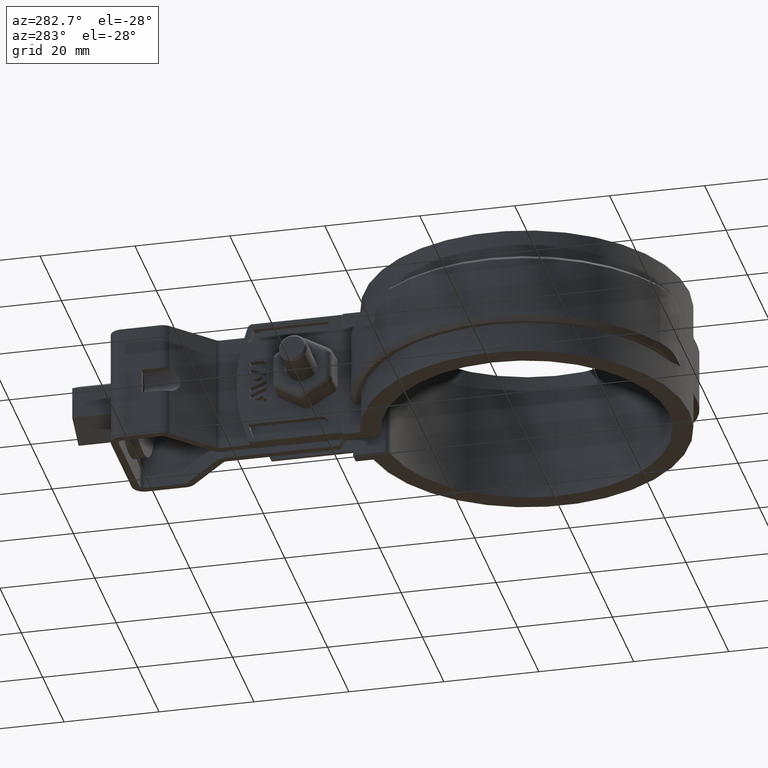
[diagram: clean part render]
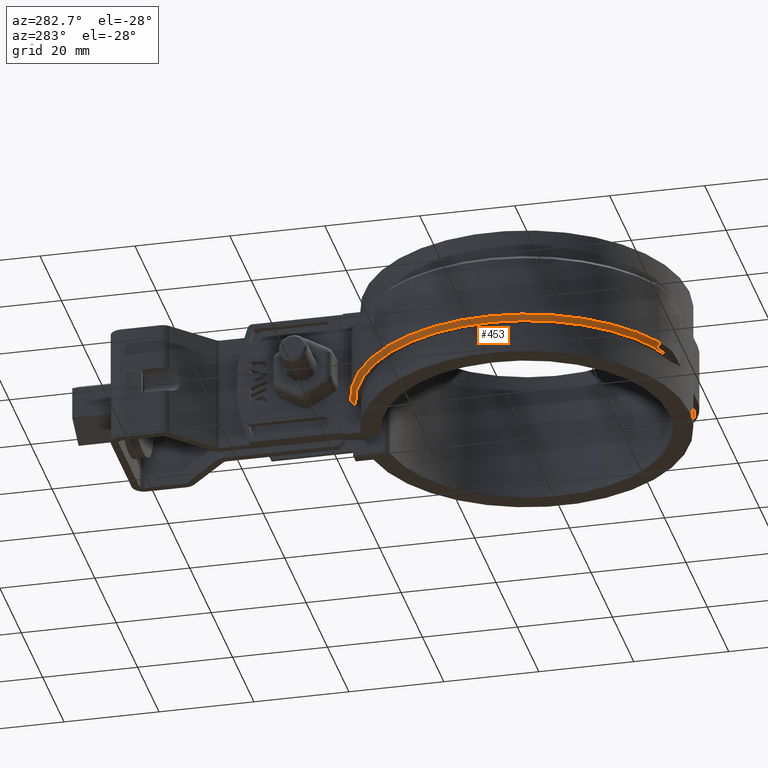
[diagram: same view with one face highlighted and labeled with its STEP entity id]
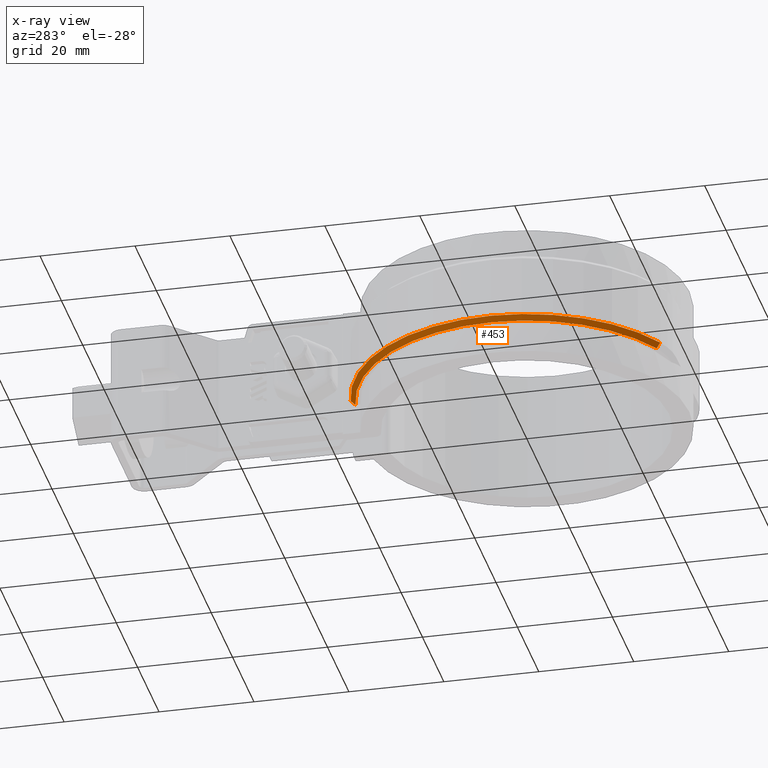
[diagram: x-ray of the same camera — body ghosted, the highlighted face saturated]
A machine part, auxiliary view. The second image highlights one B-rep face of the part: STEP entity #453.
The next image is the same camera in x-ray: the body ghosted, the highlighted face saturated — about 0% of this face is hidden behind the body in this view.
In plain terms, the highlighted conical surface has half-angle 45 deg.
Its self-contained STEP definition (entity closure, byte-faithful):
#453 = ADVANCED_FACE( '', ( #899 ), #900, .T. );
#899 = FACE_OUTER_BOUND( '', #1979, .T. );
#900 = CONICAL_SURFACE( '', #1980, 36.2450000000000, 0.785398163397448 );
#1979 = EDGE_LOOP( '', ( #4357, #4358, #4359, #4360 ) );
#1980 = AXIS2_PLACEMENT_3D( '', #4361, #4362, #4363 );
#4357 = ORIENTED_EDGE( '', *, *, #6735, .F. );
#4358 = ORIENTED_EDGE( '', *, *, #6909, .F. );
#4359 = ORIENTED_EDGE( '', *, *, #6902, .F. );
#4360 = ORIENTED_EDGE( '', *, *, #6910, .F. );
#4361 = CARTESIAN_POINT( '', ( 8.67361737988404E-016, 0.000000000000000, -19.0000000000000 ) );
#4362 = DIRECTION( '', ( 0.000000000000000, 0.000000000000000, 1.00000000000000 ) );
#4363 = DIRECTION( '', ( 1.00000000000000, 0.000000000000000, 0.000000000000000 ) );
#6735 = EDGE_CURVE( '', #7777, #7779, #7780, .T. );
#6902 = EDGE_CURVE( '', #8068, #8070, #8071, .T. );
#6909 = EDGE_CURVE( '', #8070, #7777, #8081, .T. );
#6910 = EDGE_CURVE( '', #7779, #8068, #8082, .F. );
#7777 = VERTEX_POINT( '', #10355 );
#7779 = VERTEX_POINT( '', #10358 );
#7780 = B_SPLINE_CURVE_WITH_KNOTS( '', 3, ( #10359, #10360, #10361, #10362 ), .UNSPECIFIED., .F., .F., ( 4, 4 ), ( 0.000000000000000, 0.00142478149816513 ), .UNSPECIFIED. );
#8068 = VERTEX_POINT( '', #11679 );
#8070 = VERTEX_POINT( '', #11681 );
#8071 = LINE( '', #11682, #11683 );
#8081 = CIRCLE( '', #11696, 35.2450000000000 );
#8082 = CIRCLE( '', #11697, 36.2450000000000 );
#10355 = CARTESIAN_POINT( '', ( -6.09999999999999, 34.7131102755141, -20.0000000000000 ) );
#10358 = CARTESIAN_POINT( '', ( -6.09999999999999, 35.7280005737797, -19.0000000000000 ) );
#10359 = CARTESIAN_POINT( '', ( -6.09999999999999, 34.7131102755141, -20.0000000000000 ) );
#10360 = CARTESIAN_POINT( '', ( -6.09999999999999, 35.0514779785923, -19.6667386752553 ) );
#10361 = CARTESIAN_POINT( '', ( -6.09999999999999, 35.3897727736946, -19.3334033117812 ) );
#10362 = CARTESIAN_POINT( '', ( -6.09999999999999, 35.7280005737797, -19.0000000000000 ) );
#11679 = CARTESIAN_POINT( '', ( -17.0871064701963, -31.9645243586726, -19.0000000000000 ) );
#11681 = CARTESIAN_POINT( '', ( -16.6156729905385, -31.0826227347611, -20.0000000000000 ) );
#11682 = CARTESIAN_POINT( '', ( -17.0871064701963, -31.9645243586726, -19.0000000000000 ) );
#11683 = VECTOR( '', #13633, 1000.00000000000 );
#11696 = AXIS2_PLACEMENT_3D( '', #13646, #13647, #13648 );
#11697 = AXIS2_PLACEMENT_3D( '', #13649, #13650, #13651 );
#13633 = DIRECTION( '', ( 0.333353810344388, 0.623598618607256, -0.707106781186547 ) );
#13646 = CARTESIAN_POINT( '', ( 8.67361737988404E-016, 0.000000000000000, -20.0000000000000 ) );
#13647 = DIRECTION( '', ( 0.000000000000000, 0.000000000000000, -1.00000000000000 ) );
#13648 = DIRECTION( '', ( -1.00000000000000, 0.000000000000000, 0.000000000000000 ) );
#13649 = CARTESIAN_POINT( '', ( 8.67361737988404E-016, 0.000000000000000, -19.0000000000000 ) );
#13650 = DIRECTION( '', ( 0.000000000000000, 0.000000000000000, -1.00000000000000 ) );
#13651 = DIRECTION( '', ( -1.00000000000000, 0.000000000000000, 0.000000000000000 ) );